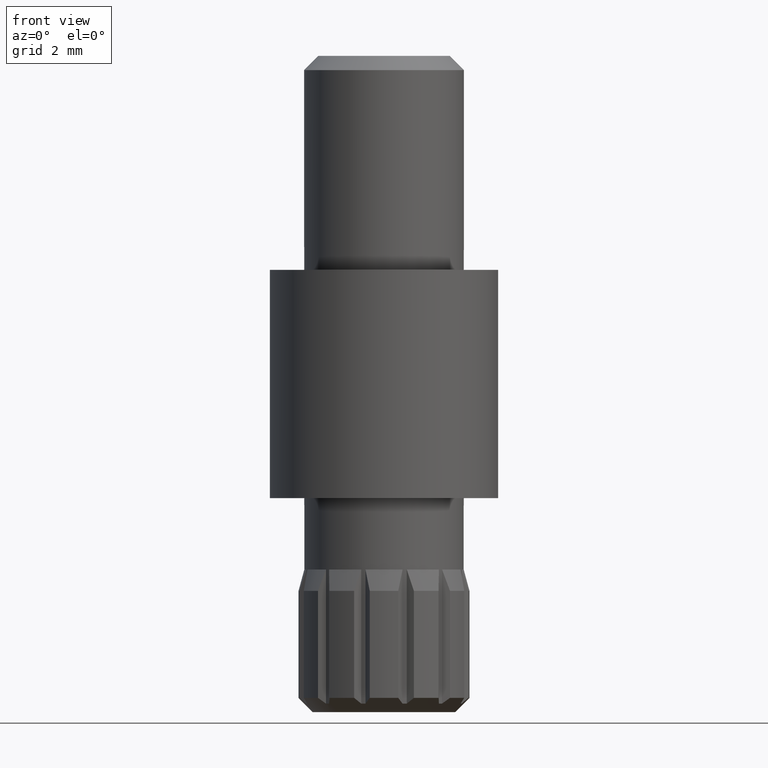
[diagram: clean part render]
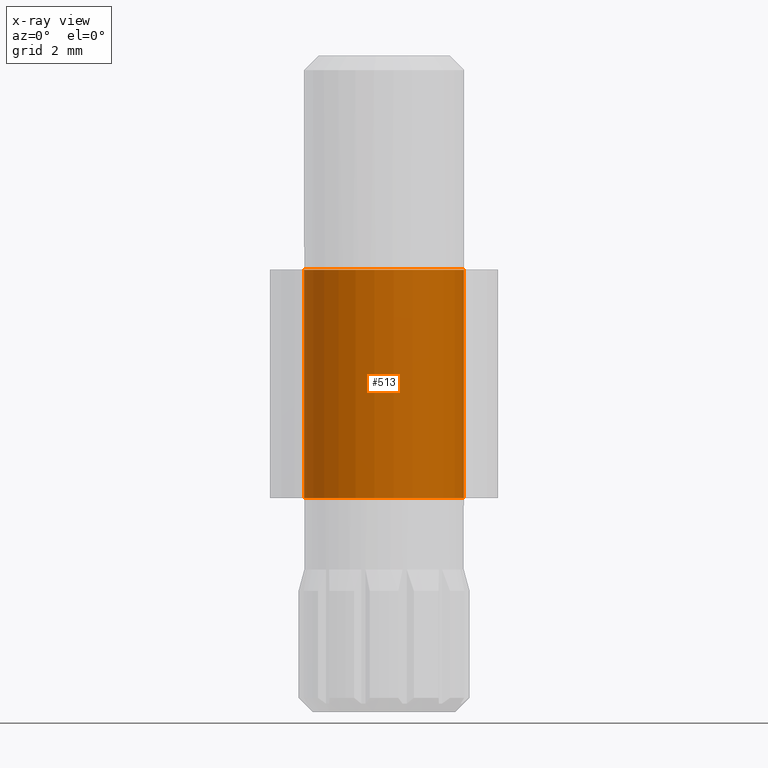
[diagram: x-ray — body ghosted, one internal face saturated and labeled with its STEP entity id]
A machine part, front view, then the same camera in x-ray: the body is ghosted and one INTERNAL B-rep face — a face not visible from any outside direction — is saturated and labeled: STEP entity #513.
In plain terms, the highlighted cylindrical surface (bore or boss wall) has radius 2.8 mm, axis along (-0, -0, -1).
Its self-contained STEP definition (entity closure, byte-faithful):
#513 = ADVANCED_FACE ( 'NONE', ( #12340, #9297 ), #7386, .F. ) ;
#1099 = DIRECTION ( 'NONE',  ( 0.000000000000000000, 0.000000000000000000, 1.000000000000000000 ) ) ;
#1194 = CARTESIAN_POINT ( 'NONE',  ( 0.000000000000000000, 0.000000000000000000, 4.000000000000000000 ) ) ;
#1736 = VERTEX_POINT ( 'NONE', #7006 ) ;
#1890 = VERTEX_POINT ( 'NONE', #7925 ) ;
#2177 = CARTESIAN_POINT ( 'NONE',  ( 0.000000000000000000, 0.000000000000000000, -4.000000000000000000 ) ) ;
#2225 = CIRCLE ( 'NONE', #12644, 2.799999999999999822 ) ;
#2986 = DIRECTION ( 'NONE',  ( 1.000000000000000000, 0.000000000000000000, 0.000000000000000000 ) ) ;
#3089 = DIRECTION ( 'NONE',  ( -1.000000000000000000, 0.000000000000000000, 0.000000000000000000 ) ) ;
#3106 = ORIENTED_EDGE ( 'NONE', *, *, #4605, .F. ) ;
#3174 = DIRECTION ( 'NONE',  ( -0.000000000000000000, -0.000000000000000000, -1.000000000000000000 ) ) ;
#3186 = AXIS2_PLACEMENT_3D ( 'NONE', #1194, #3174, #3089 ) ;
#3325 = EDGE_LOOP ( 'NONE', ( #11539 ) ) ;
#3529 = DIRECTION ( 'NONE',  ( 1.000000000000000000, 0.000000000000000000, 0.000000000000000000 ) ) ;
#3618 = AXIS2_PLACEMENT_3D ( 'NONE', #9403, #10390, #3529 ) ;
#4605 = EDGE_CURVE ( 'NONE', #1736, #1736, #2225, .T. ) ;
#4980 = EDGE_LOOP ( 'NONE', ( #3106 ) ) ;
#6659 = EDGE_CURVE ( 'NONE', #1890, #1890, #11543, .T. ) ;
#7006 = CARTESIAN_POINT ( 'NONE',  ( 2.799999999999999822, 0.000000000000000000, -4.000000000000000000 ) ) ;
#7386 = CYLINDRICAL_SURFACE ( 'NONE', #3186, 2.799999999999999822 ) ;
#7925 = CARTESIAN_POINT ( 'NONE',  ( 2.799999999999999822, 0.000000000000000000, 4.000000000000000000 ) ) ;
#9297 = FACE_OUTER_BOUND ( 'NONE', #4980, .T. ) ;
#9403 = CARTESIAN_POINT ( 'NONE',  ( 0.000000000000000000, 0.000000000000000000, 4.000000000000000000 ) ) ;
#10390 = DIRECTION ( 'NONE',  ( 0.000000000000000000, 0.000000000000000000, 1.000000000000000000 ) ) ;
#11539 = ORIENTED_EDGE ( 'NONE', *, *, #6659, .T. ) ;
#11543 = CIRCLE ( 'NONE', #3618, 2.799999999999999822 ) ;
#12340 = FACE_OUTER_BOUND ( 'NONE', #3325, .T. ) ;
#12644 = AXIS2_PLACEMENT_3D ( 'NONE', #2177, #1099, #2986 ) ;